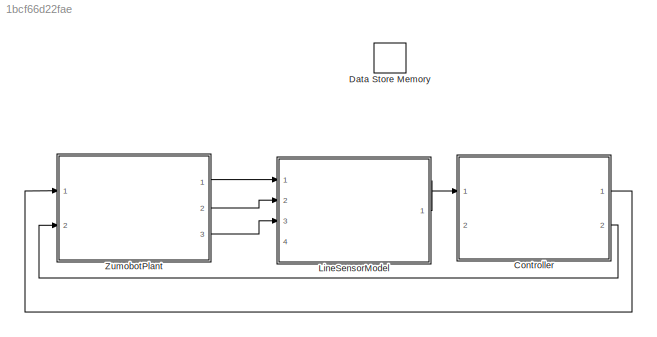
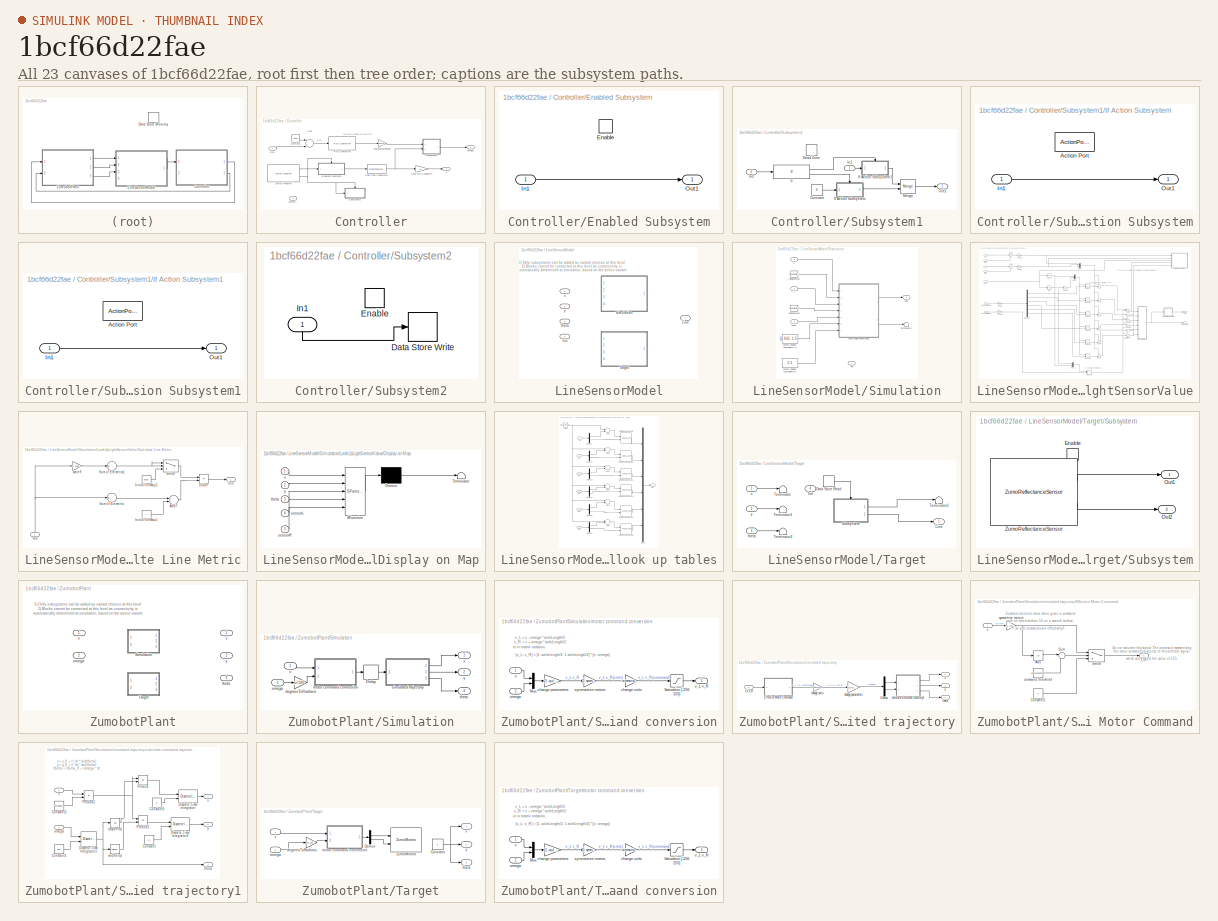
[diagram: thumbnail index - all 23 canvases of the model, root first then tree order]
MODEL slx_1bcf66d22fae
KIND model
CONFIG InitFcn = mapdata = processmap('mapTrackA.mat');
CONFIG PreLoadFcn = evalin('base','sim=1;');
WORKSPACE source: MAT-file member
WORKSPACE MCOS: class17 (value not decoded)
BLOCK [SubSystem] Controller
  Ports = [2, 2]
  RequestExecContextInheritance = off
BLOCK [DataTypeConversion] Controller/Data Type Conversion
  RndMeth = Floor
  SaturateOnIntegerOverflow = off
BLOCK [SubSystem] Controller/Enabled Subsystem
  Ports = [1, 1, 1]
  RequestExecContextInheritance = off
  TreatAsAtomicUnit = on
BLOCK [EnablePort] Controller/Enabled Subsystem/Enable
  Ports = []
BLOCK [Inport] Controller/Enabled Subsystem/In1
  IconDisplay = Port number
BLOCK [Outport] Controller/Enabled Subsystem/Out1
  IconDisplay = Port number
  InitialOutput = 0
BLOCK [Inport] Controller/Line
  IconDisplay = Port number
BLOCK [Reference] Controller/PID Controller  REF=simulink/Continuous/PID Controller
  AntiWindupMode = none
  Controller = PID
  D = 0.005
  DOutDataTypeStr = Inherit: Inherit via internal rule
  DOutMax = []
  DOutMin = []
  DParamDataTypeStr = Inherit: Inherit via internal rule
  DParamMax = []
  DParamMin = []
  DifferentiatorICPrevScaledInput = 0
  DifferentiatorOutDataTypeStr = Inherit: Inherit via internal rule
  DifferentiatorOutMax = []
  DifferentiatorOutMin = []
  ExternalReset = none
  FilterContinuousStateAttributes = ''
  FilterMethod = Forward Euler
  FilterOutDataTypeStr = Inherit: Inherit via internal rule
  FilterOutMax = []
  FilterOutMin = []
  FilterRTWStateStorageClass = Auto
  FilterStateMustResolveToSignalObject = off
  Form = Parallel
  I = 0.01
  IOutDataTypeStr = Inherit: Inherit via internal rule
  IOutMax = []
  IOutMin = []
  IParamDataTypeStr = Inherit: Inherit via internal rule
  IParamMax = []
  IParamMin = []
  IgnoreLimit = off
  InitialConditionForFilter = 0
  InitialConditionForIntegrator = 0
  InitialConditionSource = internal
  IntegratorContinuousStateAttributes = ''
  IntegratorMethod = Forward Euler
  IntegratorOutDataTypeStr = Inherit: Inherit via internal rule
  IntegratorOutMax = []
  IntegratorOutMin = []
  IntegratorRTWStateStorageClass = Auto
  IntegratorStateMustResolveToSignalObject = off
  Kb = 1
  KbOutDataTypeStr = Inherit: Inherit via internal rule
  KbOutMax = []
  KbOutMin = []
  KbParamDataTypeStr = Inherit: Inherit via internal rule
  KbParamMax = []
  KbParamMin = []
  Kt = 1
  KtOutDataTypeStr = Inherit: Inherit via internal rule
  KtOutMax = []
  KtOutMin = []
  KtParamDataTypeStr = Inherit: Inherit via internal rule
  KtParamMax = []
  KtParamMin = []
  LimitOutput = off
  LinearizeAsGain = on
  LockScale = off
  LowerSaturationLimit = -5
  N = 1
  NOutDataTypeStr = Inherit: Inherit via internal rule
  NOutMax = []
  NOutMin = []
  NParamDataTypeStr = Inherit: Inherit via internal rule
  NParamMax = []
  NParamMin = []
  P = 0.01
  POutDataTypeStr = Inherit: Inherit via internal rule
  POutMax = []
  POutMin = []
  PParamDataTypeStr = Inherit: Inherit via internal rule
  PParamMax = []
  PParamMin = []
  Ports = [1, 1]
  RndMeth = Floor
  SampleTime = -1
  SaturateOnIntegerOverflow = off
  SaturationOutDataTypeStr = Inherit: Same as input
  SaturationOutMax = []
  SaturationOutMin = []
  SourceBlock = simulink/Continuous/PID Controller
  SourceType = PID 1dof
  SumAccumDataTypeStr = Inherit: Inherit via internal rule
  SumDAccumDataTypeStr = Inherit: Inherit via internal rule
  SumDOutDataTypeStr = Inherit: Inherit via internal rule
  SumDOutMax = []
  SumDOutMin = []
  SumI1AccumDataTypeStr = Inherit: Inherit via internal rule
  SumI1OutDataTypeStr = Inherit: Inherit via internal rule
  SumI1OutMax = []
  SumI1OutMin = []
  SumI2AccumDataTypeStr = Inherit: Inherit via internal rule
  SumI2OutDataTypeStr = Inherit: Inherit via internal rule
  SumI2OutMax = []
  SumI2OutMin = []
  SumI3AccumDataTypeStr = Inherit: Inherit via internal rule
  SumI3OutDataTypeStr = Inherit: Inherit via internal rule
  SumI3OutMax = []
  SumI3OutMin = []
  SumOutDataTypeStr = Inherit: Inherit via internal rule
  SumOutMax = []
  SumOutMin = []
  TimeDomain = Discrete-time
  TrackingMode = off
  UpperSaturationLimit = 5
  UseFilter = on
  ZeroCross = on
BLOCK [Reference] Controller/Serial Receive  REF=arduinolib/Serial Receive
  Ports = [0, 2]
  SourceBlock = arduinolib/Serial Receive
  SourceType = Arduino Serial Receive
  blockPlatform = arduino
  portNumber = 0
  sampleTime = 0.01
  showOutStatus = on
BLOCK [Constant] Controller/SetPoint
  Value = 2500
BLOCK [SubSystem] Controller/Subsystem1
  Ports = [2, 1]
  RequestExecContextInheritance = off
BLOCK [Constant] Controller/Subsystem1/Constant
  Value = 0
BLOCK [DeadZone] Controller/Subsystem1/Dead Zone
  Commented = on
  LowerValue = -5
  UpperValue = 5
BLOCK [If] Controller/Subsystem1/If
  IfExpression = u1 > 5
  Ports = [1, 2]
BLOCK [SubSystem] Controller/Subsystem1/If Action Subsystem
  Ports = [1, 1, 0, 0, 0, 0, 0, 1]
  RequestExecContextInheritance = off
  TreatAsAtomicUnit = on
BLOCK [ActionPort] Controller/Subsystem1/If Action Subsystem/Action Port
  ActionType = else
BLOCK [Inport] Controller/Subsystem1/If Action Subsystem/In1
  IconDisplay = Port number
BLOCK [Outport] Controller/Subsystem1/If Action Subsystem/Out1
  IconDisplay = Port number
BLOCK [SubSystem] Controller/Subsystem1/If Action Subsystem1
  Ports = [1, 1, 0, 0, 0, 0, 0, 1]
  RequestExecContextInheritance = off
  TreatAsAtomicUnit = on
BLOCK [ActionPort] Controller/Subsystem1/If Action Subsystem1/Action Port
  ActionType = then
BLOCK [Inport] Controller/Subsystem1/If Action Subsystem1/In1
  IconDisplay = Port number
BLOCK [Outport] Controller/Subsystem1/If Action Subsystem1/Out1
  IconDisplay = Port number
BLOCK [Inport] Controller/Subsystem1/In1
  IconDisplay = Port number
BLOCK [Inport] Controller/Subsystem1/In2
  IconDisplay = Port number
  Port = 2
BLOCK [Merge] Controller/Subsystem1/Merge
  Ports = [2, 1]
BLOCK [Outport] Controller/Subsystem1/Out1
  IconDisplay = Port number
BLOCK [SubSystem] Controller/Subsystem2
  Ports = [1, 0, 1]
  Priority = 0
  RequestExecContextInheritance = off
BLOCK [DataStoreWrite] Controller/Subsystem2/Data Store Write
  DataStoreElements = A
  Ports = [1]
BLOCK [EnablePort] Controller/Subsystem2/Enable
  Ports = []
BLOCK [Inport] Controller/Subsystem2/In1
  IconDisplay = Port number
BLOCK [Sum] Controller/Sum
  InputSameDT = off
  Inputs = +-
  OutDataTypeStr = Inherit: Inherit via internal rule
  Ports = [2, 1]
  SaturateOnIntegerOverflow = off
BLOCK [Outport] Controller/omega
  IconDisplay = Port number
  Port = 2
BLOCK [Gain] Controller/radiansToDegrees
  Gain = 180/pi
  OutDataTypeStr = Inherit: Inherit via internal rule
  ParamDataTypeStr = Inherit: Inherit via internal rule
  SaturateOnIntegerOverflow = off
BLOCK [Gain] Controller/track while opposite
  OutDataTypeStr = Inherit: Inherit via internal rule
  ParamDataTypeStr = Inherit: Inherit via internal rule
  SaturateOnIntegerOverflow = off
BLOCK [Outport] Controller/v
  IconDisplay = Port number
BLOCK [Inport] Controller/velocity
  IconDisplay = Port number
  Port = 2
BLOCK [DataStoreMemory] Data Store Memory
  Priority = 2
  ReadBeforeWriteMsg = warning
  WriteAfterReadMsg = warning
  WriteAfterWriteMsg = warning
BLOCK [SubSystem] LineSensorModel
  Ports = [4, 1]
  RequestExecContextInheritance = off
  Variant = on
BLOCK [Inport] LineSensorModel/Init
  IconDisplay = Port number
  Port = 4
BLOCK [Outport] LineSensorModel/Line
  IconDisplay = Port number
BLOCK [SubSystem] LineSensorModel/Simulation
  Ports = [4, 1]
  RequestExecContextInheritance = off
  VariantControl = sim==1
BLOCK [Inport] LineSensorModel/Simulation/Init
  IconDisplay = Port number
  Port = 4
BLOCK [Constant] LineSensorModel/Simulation/InitialXonMap
  Value = mapdata.StartX
BLOCK [Constant] LineSensorModel/Simulation/InitialYonMap
  Value = mapdata.StartY
BLOCK [Outport] LineSensorModel/Simulation/Line
  IconDisplay = Port number
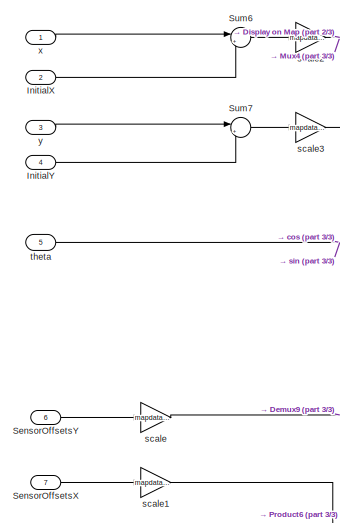
[diagram: LineSensorModel/Simulation/LookUpLightSensorValue - part 1/3, top left region]
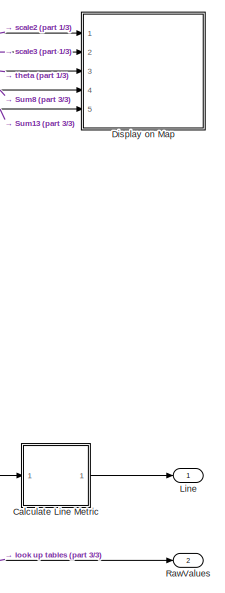
[diagram: LineSensorModel/Simulation/LookUpLightSensorValue - part 2/3, top right region]
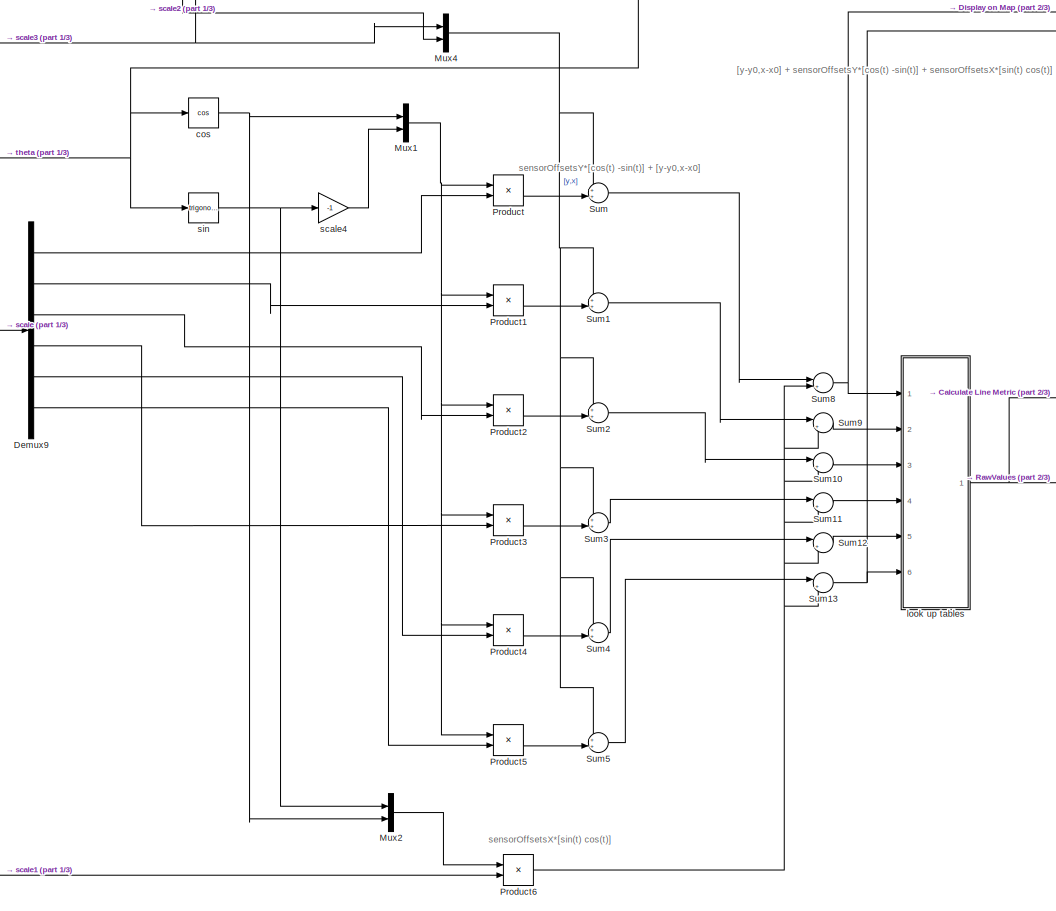
[diagram: LineSensorModel/Simulation/LookUpLightSensorValue - part 3/3, center side, full height]
BLOCK [SubSystem] LineSensorModel/Simulation/LookUpLightSensorValue
  Ports = [7, 2]
  RequestExecContextInheritance = off
BLOCK [SubSystem] LineSensorModel/Simulation/LookUpLightSensorValue/Calculate Line Metric
  Ports = [1, 1]
  RequestExecContextInheritance = off
BLOCK [Sum] LineSensorModel/Simulation/LookUpLightSensorValue/Calculate Line Metric/Add7
  InputSameDT = off
  OutDataTypeStr = Inherit: Inherit via internal rule
  Ports = [2, 1]
  SaturateOnIntegerOverflow = off
BLOCK [Product] LineSensorModel/Simulation/LookUpLightSensorValue/Calculate Line Metric/Divide
  InputSameDT = off
  Inputs = */
  OutDataTypeStr = Inherit: Inherit via internal rule
  Ports = [2, 1]
  RndMeth = Floor
  SaturateOnIntegerOverflow = off
BLOCK [Constant] LineSensorModel/Simulation/LookUpLightSensorValue/Calculate Line Metric/InitialYonMap1
BLOCK [Constant] LineSensorModel/Simulation/LookUpLightSensorValue/Calculate Line Metric/InitialYonMap2
  Value = 5000
BLOCK [Sum] LineSensorModel/Simulation/LookUpLightSensorValue/Calculate Line Metric/Sum of Elements
  InputSameDT = off
  Inputs = +
  OutDataTypeStr = Inherit: Inherit via internal rule
  Ports = [1, 1]
  SaturateOnIntegerOverflow = off
BLOCK [Sum] LineSensorModel/Simulation/LookUpLightSensorValue/Calculate Line Metric/Sum of Elements1
  InputSameDT = off
  Inputs = +
  OutDataTypeStr = Inherit: Inherit via internal rule
  Ports = [1, 1]
  SaturateOnIntegerOverflow = off
BLOCK [Switch] LineSensorModel/Simulation/LookUpLightSensorValue/Calculate Line Metric/Switch
  Criteria = u2 > Threshold
  InputSameDT = off
  SaturateOnIntegerOverflow = off
BLOCK [Outport] LineSensorModel/Simulation/LookUpLightSensorValue/Calculate Line Metric/line
  IconDisplay = Port number
BLOCK [Inport] LineSensorModel/Simulation/LookUpLightSensorValue/Calculate Line Metric/raw
  IconDisplay = Port number
BLOCK [Gain] LineSensorModel/Simulation/LookUpLightSensorValue/Calculate Line Metric/scale9
  Gain = [1 1000 2000 3000 4000 5000]
  OutDataTypeStr = Inherit: Inherit via internal rule
  ParamDataTypeStr = Inherit: Inherit via internal rule
  SaturateOnIntegerOverflow = off
BLOCK [Demux] LineSensorModel/Simulation/LookUpLightSensorValue/Demux9
  DisplayOption = bar
  Outputs = 6
  Ports = [1, 6]
BLOCK [SubSystem] LineSensorModel/Simulation/LookUpLightSensorValue/Display on Map
  ErrorFcn = Stateflow.Translate.translate
  PermitHierarchicalResolution = ExplicitOnly
  Ports = [5]
  RequestExecContextInheritance = off
  SFBlockType = MATLAB Function
  TreatAsAtomicUnit = on
BLOCK [Demux] LineSensorModel/Simulation/LookUpLightSensorValue/Display on Map/ Demux 
  Outputs = 1
  Ports = [1, 1]
BLOCK [S-Function] LineSensorModel/Simulation/LookUpLightSensorValue/Display on Map/ SFunction 
  EnableBusSupport = on
  FunctionName = sf_sfun
  PortCounts = [5 1]
  Ports = [5, 1]
  Tag = Stateflow S-Function zumo_PID_controller_line_value 1
BLOCK [Terminator] LineSensorModel/Simulation/LookUpLightSensorValue/Display on Map/ Terminator 
BLOCK [Inport] LineSensorModel/Simulation/LookUpLightSensorValue/Display on Map/sensorL
  IconDisplay = Port number
  Port = 4
BLOCK [Inport] LineSensorModel/Simulation/LookUpLightSensorValue/Display on Map/sensorR
  IconDisplay = Port number
  Port = 5
BLOCK [Inport] LineSensorModel/Simulation/LookUpLightSensorValue/Display on Map/theta
  IconDisplay = Port number
  Port = 3
BLOCK [Inport] LineSensorModel/Simulation/LookUpLightSensorValue/Display on Map/x
  IconDisplay = Port number
BLOCK [Inport] LineSensorModel/Simulation/LookUpLightSensorValue/Display on Map/y
  IconDisplay = Port number
  Port = 2
BLOCK [Inport] LineSensorModel/Simulation/LookUpLightSensorValue/InitialX
  IconDisplay = Port number
  Port = 2
BLOCK [Inport] LineSensorModel/Simulation/LookUpLightSensorValue/InitialY
  IconDisplay = Port number
  Port = 4
BLOCK [Outport] LineSensorModel/Simulation/LookUpLightSensorValue/Line
  IconDisplay = Port number
BLOCK [Mux] LineSensorModel/Simulation/LookUpLightSensorValue/Mux1
  DisplayOption = bar
  Inputs = 2
  Ports = [2, 1]
BLOCK [Mux] LineSensorModel/Simulation/LookUpLightSensorValue/Mux2
  DisplayOption = bar
  Inputs = 2
  Ports = [2, 1]
BLOCK [Mux] LineSensorModel/Simulation/LookUpLightSensorValue/Mux4
  DisplayOption = bar
  Inputs = 2
  Ports = [2, 1]
BLOCK [Product] LineSensorModel/Simulation/LookUpLightSensorValue/Product
  InputSameDT = off
  OutDataTypeStr = Inherit: Inherit via internal rule
  Ports = [2, 1]
  RndMeth = Floor
  SaturateOnIntegerOverflow = off
BLOCK [Product] LineSensorModel/Simulation/LookUpLightSensorValue/Product1
  InputSameDT = off
  OutDataTypeStr = Inherit: Inherit via internal rule
  Ports = [2, 1]
  RndMeth = Floor
  SaturateOnIntegerOverflow = off
BLOCK [Product] LineSensorModel/Simulation/LookUpLightSensorValue/Product2
  InputSameDT = off
  OutDataTypeStr = Inherit: Inherit via internal rule
  Ports = [2, 1]
  RndMeth = Floor
  SaturateOnIntegerOverflow = off
BLOCK [Product] LineSensorModel/Simulation/LookUpLightSensorValue/Product3
  InputSameDT = off
  OutDataTypeStr = Inherit: Inherit via internal rule
  Ports = [2, 1]
  RndMeth = Floor
  SaturateOnIntegerOverflow = off
BLOCK [Product] LineSensorModel/Simulation/LookUpLightSensorValue/Product4
  InputSameDT = off
  OutDataTypeStr = Inherit: Inherit via internal rule
  Ports = [2, 1]
  RndMeth = Floor
  SaturateOnIntegerOverflow = off
BLOCK [Product] LineSensorModel/Simulation/LookUpLightSensorValue/Product5
  InputSameDT = off
  OutDataTypeStr = Inherit: Inherit via internal rule
  Ports = [2, 1]
  RndMeth = Floor
  SaturateOnIntegerOverflow = off
BLOCK [Product] LineSensorModel/Simulation/LookUpLightSensorValue/Product6
  InputSameDT = off
  OutDataTypeStr = Inherit: Inherit via internal rule
  Ports = [2, 1]
  RndMeth = Floor
  SaturateOnIntegerOverflow = off
BLOCK [Outport] LineSensorModel/Simulation/LookUpLightSensorValue/RawValues
  IconDisplay = Port number
  Port = 2
BLOCK [Inport] LineSensorModel/Simulation/LookUpLightSensorValue/SensorOffsetsX
  IconDisplay = Port number
  Port = 7
BLOCK [Inport] LineSensorModel/Simulation/LookUpLightSensorValue/SensorOffsetsY
  IconDisplay = Port number
  Port = 6
BLOCK [Sum] LineSensorModel/Simulation/LookUpLightSensorValue/Sum
  IconShape = round
  InputSameDT = off
  Inputs = ++|
  OutDataTypeStr = Inherit: Inherit via internal rule
  Ports = [2, 1]
  SaturateOnIntegerOverflow = off
BLOCK [Sum] LineSensorModel/Simulation/LookUpLightSensorValue/Sum1
  IconShape = round
  InputSameDT = off
  Inputs = ++|
  OutDataTypeStr = Inherit: Inherit via internal rule
  Ports = [2, 1]
  SaturateOnIntegerOverflow = off
BLOCK [Sum] LineSensorModel/Simulation/LookUpLightSensorValue/Sum10
  IconShape = round
  InputSameDT = off
  Inputs = |++
  OutDataTypeStr = Inherit: Inherit via internal rule
  Ports = [2, 1]
  SaturateOnIntegerOverflow = off
BLOCK [Sum] LineSensorModel/Simulation/LookUpLightSensorValue/Sum11
  IconShape = round
  InputSameDT = off
  Inputs = |++
  OutDataTypeStr = Inherit: Inherit via internal rule
  Ports = [2, 1]
  SaturateOnIntegerOverflow = off
BLOCK [Sum] LineSensorModel/Simulation/LookUpLightSensorValue/Sum12
  IconShape = round
  InputSameDT = off
  Inputs = |++
  OutDataTypeStr = Inherit: Inherit via internal rule
  Ports = [2, 1]
  SaturateOnIntegerOverflow = off
BLOCK [Sum] LineSensorModel/Simulation/LookUpLightSensorValue/Sum13
  IconShape = round
  InputSameDT = off
  Inputs = |++
  OutDataTypeStr = Inherit: Inherit via internal rule
  Ports = [2, 1]
  SaturateOnIntegerOverflow = off
BLOCK [Sum] LineSensorModel/Simulation/LookUpLightSensorValue/Sum2
  IconShape = round
  InputSameDT = off
  Inputs = ++|
  OutDataTypeStr = Inherit: Inherit via internal rule
  Ports = [2, 1]
  SaturateOnIntegerOverflow = off
BLOCK [Sum] LineSensorModel/Simulation/LookUpLightSensorValue/Sum3
  IconShape = round
  InputSameDT = off
  Inputs = ++|
  OutDataTypeStr = Inherit: Inherit via internal rule
  Ports = [2, 1]
  SaturateOnIntegerOverflow = off
BLOCK [Sum] LineSensorModel/Simulation/LookUpLightSensorValue/Sum4
  IconShape = round
  InputSameDT = off
  Inputs = ++|
  OutDataTypeStr = Inherit: Inherit via internal rule
  Ports = [2, 1]
  SaturateOnIntegerOverflow = off
BLOCK [Sum] LineSensorModel/Simulation/LookUpLightSensorValue/Sum5
  IconShape = round
  InputSameDT = off
  Inputs = ++|
  OutDataTypeStr = Inherit: Inherit via internal rule
  Ports = [2, 1]
  SaturateOnIntegerOverflow = off
BLOCK [Sum] LineSensorModel/Simulation/LookUpLightSensorValue/Sum6
  IconShape = round
  InputSameDT = off
  Inputs = |++
  OutDataTypeStr = Inherit: Inherit via internal rule
  Ports = [2, 1]
  SaturateOnIntegerOverflow = off
BLOCK [Sum] LineSensorModel/Simulation/LookUpLightSensorValue/Sum7
  IconShape = round
  InputSameDT = off
  Inputs = |++
  OutDataTypeStr = Inherit: Inherit via internal rule
  Ports = [2, 1]
  SaturateOnIntegerOverflow = off
BLOCK [Sum] LineSensorModel/Simulation/LookUpLightSensorValue/Sum8
  IconShape = round
  InputSameDT = off
  Inputs = |++
  OutDataTypeStr = Inherit: Inherit via internal rule
  Ports = [2, 1]
  SaturateOnIntegerOverflow = off
BLOCK [Sum] LineSensorModel/Simulation/LookUpLightSensorValue/Sum9
  IconShape = round
  InputSameDT = off
  Inputs = |++
  OutDataTypeStr = Inherit: Inherit via internal rule
  Ports = [2, 1]
  SaturateOnIntegerOverflow = off
BLOCK [Trigonometry] LineSensorModel/Simulation/LookUpLightSensorValue/cos
  Operator = cos
  Ports = [1, 1]
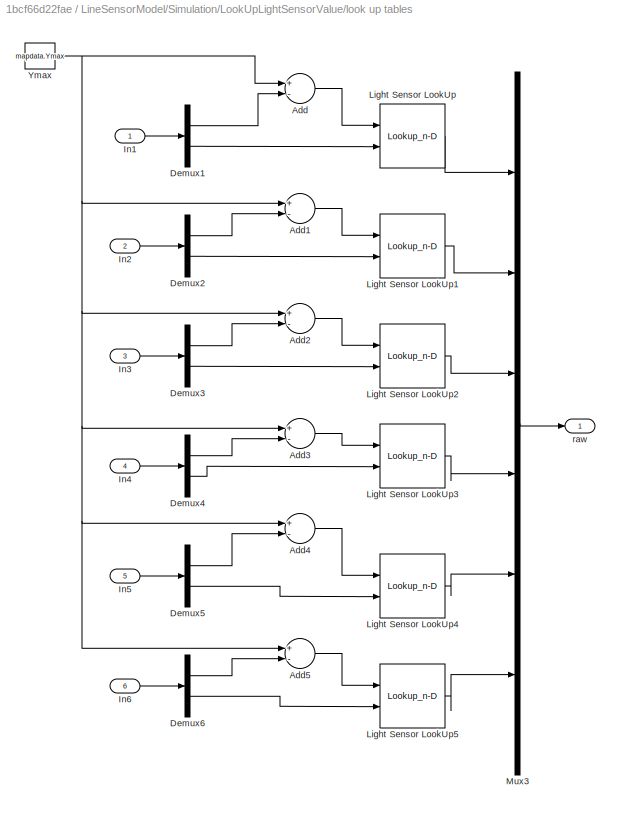
BLOCK [SubSystem] LineSensorModel/Simulation/LookUpLightSensorValue/look up tables
  Ports = [6, 1]
  RequestExecContextInheritance = off
BLOCK [Sum] LineSensorModel/Simulation/LookUpLightSensorValue/look up tables/Add
  InputSameDT = off
  Inputs = +-
  OutDataTypeStr = Inherit: Inherit via internal rule
  Ports = [2, 1]
  SaturateOnIntegerOverflow = off
BLOCK [Sum] LineSensorModel/Simulation/LookUpLightSensorValue/look up tables/Add1
  InputSameDT = off
  Inputs = +-
  OutDataTypeStr = Inherit: Inherit via internal rule
  Ports = [2, 1]
  SaturateOnIntegerOverflow = off
BLOCK [Sum] LineSensorModel/Simulation/LookUpLightSensorValue/look up tables/Add2
  InputSameDT = off
  Inputs = +-
  OutDataTypeStr = Inherit: Inherit via internal rule
  Ports = [2, 1]
  SaturateOnIntegerOverflow = off
BLOCK [Sum] LineSensorModel/Simulation/LookUpLightSensorValue/look up tables/Add3
  InputSameDT = off
  Inputs = +-
  OutDataTypeStr = Inherit: Inherit via internal rule
  Ports = [2, 1]
  SaturateOnIntegerOverflow = off
BLOCK [Sum] LineSensorModel/Simulation/LookUpLightSensorValue/look up tables/Add4
  InputSameDT = off
  Inputs = +-
  OutDataTypeStr = Inherit: Inherit via internal rule
  Ports = [2, 1]
  SaturateOnIntegerOverflow = off
BLOCK [Sum] LineSensorModel/Simulation/LookUpLightSensorValue/look up tables/Add5
  InputSameDT = off
  Inputs = +-
  OutDataTypeStr = Inherit: Inherit via internal rule
  Ports = [2, 1]
  SaturateOnIntegerOverflow = off
BLOCK [Demux] LineSensorModel/Simulation/LookUpLightSensorValue/look up tables/Demux1
  DisplayOption = bar
  Outputs = 2
  Ports = [1, 2]
BLOCK [Demux] LineSensorModel/Simulation/LookUpLightSensorValue/look up tables/Demux2
  DisplayOption = bar
  Outputs = 2
  Ports = [1, 2]
BLOCK [Demux] LineSensorModel/Simulation/LookUpLightSensorValue/look up tables/Demux3
  DisplayOption = bar
  Outputs = 2
  Ports = [1, 2]
BLOCK [Demux] LineSensorModel/Simulation/LookUpLightSensorValue/look up tables/Demux4
  DisplayOption = bar
  Outputs = 2
  Ports = [1, 2]
BLOCK [Demux] LineSensorModel/Simulation/LookUpLightSensorValue/look up tables/Demux5
  DisplayOption = bar
  Outputs = 2
  Ports = [1, 2]
BLOCK [Demux] LineSensorModel/Simulation/LookUpLightSensorValue/look up tables/Demux6
  DisplayOption = bar
  Outputs = 2
  Ports = [1, 2]
BLOCK [Inport] LineSensorModel/Simulation/LookUpLightSensorValue/look up tables/In1
  IconDisplay = Port number
BLOCK [Inport] LineSensorModel/Simulation/LookUpLightSensorValue/look up tables/In2
  IconDisplay = Port number
  Port = 2
BLOCK [Inport] LineSensorModel/Simulation/LookUpLightSensorValue/look up tables/In3
  IconDisplay = Port number
  Port = 3
BLOCK [Inport] LineSensorModel/Simulation/LookUpLightSensorValue/look up tables/In4
  IconDisplay = Port number
  Port = 4
BLOCK [Inport] LineSensorModel/Simulation/LookUpLightSensorValue/look up tables/In5
  IconDisplay = Port number
  Port = 5
BLOCK [Inport] LineSensorModel/Simulation/LookUpLightSensorValue/look up tables/In6
  IconDisplay = Port number
  Port = 6
BLOCK [Lookup_n-D] LineSensorModel/Simulation/LookUpLightSensorValue/look up tables/Light Sensor LookUp
  BreakpointsForDimension1 = mapdata.yBreakPoints
  BreakpointsForDimension2 = mapdata.xBreakPoints
  ExtrapMethod = Clip
  InterpMethod = Flat
  Ports = [2, 1]
  RndMeth = Round
  SaturateOnIntegerOverflow = on
  Table = mapdata.ReflectanceData
  UseLastTableValue = on
BLOCK [Lookup_n-D] LineSensorModel/Simulation/LookUpLightSensorValue/look up tables/Light Sensor LookUp1
  BreakpointsForDimension1 = mapdata.yBreakPoints
  BreakpointsForDimension2 = mapdata.xBreakPoints
  ExtrapMethod = Clip
  InterpMethod = Flat
  Ports = [2, 1]
  RndMeth = Round
  SaturateOnIntegerOverflow = on
  Table = mapdata.ReflectanceData
  UseLastTableValue = on
BLOCK [Lookup_n-D] LineSensorModel/Simulation/LookUpLightSensorValue/look up tables/Light Sensor LookUp2
  BreakpointsForDimension1 = mapdata.yBreakPoints
  BreakpointsForDimension2 = mapdata.xBreakPoints
  ExtrapMethod = Clip
  InterpMethod = Flat
  Ports = [2, 1]
  RndMeth = Round
  SaturateOnIntegerOverflow = on
  Table = mapdata.ReflectanceData
  UseLastTableValue = on
BLOCK [Lookup_n-D] LineSensorModel/Simulation/LookUpLightSensorValue/look up tables/Light Sensor LookUp3
  BreakpointsForDimension1 = mapdata.yBreakPoints
  BreakpointsForDimension2 = mapdata.xBreakPoints
  ExtrapMethod = Clip
  InterpMethod = Flat
  Ports = [2, 1]
  RndMeth = Round
  SaturateOnIntegerOverflow = on
  Table = mapdata.ReflectanceData
  UseLastTableValue = on
BLOCK [Lookup_n-D] LineSensorModel/Simulation/LookUpLightSensorValue/look up tables/Light Sensor LookUp4
  BreakpointsForDimension1 = mapdata.yBreakPoints
  BreakpointsForDimension2 = mapdata.xBreakPoints
  ExtrapMethod = Clip
  InterpMethod = Flat
  Ports = [2, 1]
  RndMeth = Round
  SaturateOnIntegerOverflow = on
  Table = mapdata.ReflectanceData
  UseLastTableValue = on
BLOCK [Lookup_n-D] LineSensorModel/Simulation/LookUpLightSensorValue/look up tables/Light Sensor LookUp5
  BreakpointsForDimension1 = mapdata.yBreakPoints
  BreakpointsForDimension2 = mapdata.xBreakPoints
  ExtrapMethod = Clip
  InterpMethod = Flat
  Ports = [2, 1]
  RndMeth = Round
  SaturateOnIntegerOverflow = on
  Table = mapdata.ReflectanceData
  UseLastTableValue = on
BLOCK [Mux] LineSensorModel/Simulation/LookUpLightSensorValue/look up tables/Mux3
  DisplayOption = bar
  Inputs = 6
  Ports = [6, 1]
BLOCK [Constant] LineSensorModel/Simulation/LookUpLightSensorValue/look up tables/Ymax
  Value = mapdata.Ymax
BLOCK [Outport] LineSensorModel/Simulation/LookUpLightSensorValue/look up tables/raw
  IconDisplay = Port number
BLOCK [Gain] LineSensorModel/Simulation/LookUpLightSensorValue/scale
  Gain = mapdata.scale
  OutDataTypeStr = Inherit: Inherit via internal rule
  ParamDataTypeStr = Inherit: Inherit via internal rule
  SaturateOnIntegerOverflow = off
BLOCK [Gain] LineSensorModel/Simulation/LookUpLightSensorValue/scale1
  Gain = mapdata.scale
  OutDataTypeStr = Inherit: Inherit via internal rule
  ParamDataTypeStr = Inherit: Inherit via internal rule
  SaturateOnIntegerOverflow = off
BLOCK [Gain] LineSensorModel/Simulation/LookUpLightSensorValue/scale2
  Gain = mapdata.scale
  OutDataTypeStr = Inherit: Inherit via internal rule
  ParamDataTypeStr = Inherit: Inherit via internal rule
  SaturateOnIntegerOverflow = off
BLOCK [Gain] LineSensorModel/Simulation/LookUpLightSensorValue/scale3
  Gain = mapdata.scale
  OutDataTypeStr = Inherit: Inherit via internal rule
  ParamDataTypeStr = Inherit: Inherit via internal rule
  SaturateOnIntegerOverflow = off
BLOCK [Gain] LineSensorModel/Simulation/LookUpLightSensorValue/scale4
  Gain = -1
  OutDataTypeStr = Inherit: Inherit via internal rule
  ParamDataTypeStr = Inherit: Inherit via internal rule
  SaturateOnIntegerOverflow = off
BLOCK [Trigonometry] LineSensorModel/Simulation/LookUpLightSensorValue/sin
  Ports = [1, 1]
BLOCK [Inport] LineSensorModel/Simulation/LookUpLightSensorValue/theta
  IconDisplay = Port number
  Port = 5
BLOCK [Inport] LineSensorModel/Simulation/LookUpLightSensorValue/x
  IconDisplay = Port number
BLOCK [Inport] LineSensorModel/Simulation/LookUpLightSensorValue/y
  IconDisplay = Port number
  Port = 3
BLOCK [Terminator] LineSensorModel/Simulation/Terminator2
BLOCK [Constant] LineSensorModel/Simulation/sensor position coefficients (Y)
  Value = [2.945, 1.585, 0.475,-0.475,-1.585, -2.945]
BLOCK [Constant] LineSensorModel/Simulation/sensor position coefficients(X)
  Value = 5.5
BLOCK [Inport] LineSensorModel/Simulation/theta
  IconDisplay = Port number
  Port = 3
BLOCK [Inport] LineSensorModel/Simulation/x
  IconDisplay = Port number
BLOCK [Inport] LineSensorModel/Simulation/y
  IconDisplay = Port number
  Port = 2
BLOCK [SubSystem] LineSensorModel/Target
  Ports = [4, 1]
  RequestExecContextInheritance = off
  VariantControl = sim==0
BLOCK [DataStoreRead] LineSensorModel/Target/Data Store Read
  Ports = [0, 1]
BLOCK [Inport] LineSensorModel/Target/Init
  IconDisplay = Port number
  Port = 4
BLOCK [Outport] LineSensorModel/Target/Line
  IconDisplay = Port number
BLOCK [SubSystem] LineSensorModel/Target/Subsystem
  Ports = [0, 2, 1]
  RequestExecContextInheritance = off
BLOCK [EnablePort] LineSensorModel/Target/Subsystem/Enable
  Ports = []
BLOCK [Outport] LineSensorModel/Target/Subsystem/Out1
  IconDisplay = Port number
BLOCK [Outport] LineSensorModel/Target/Subsystem/Out2
  IconDisplay = Port number
  InitialOutput = 2500
  Port = 2
BLOCK [Reference] LineSensorModel/Target/Subsystem/ZumoReflectanceSensor  REF=ZumoBotLib/ZumoReflectanceSensor
  Ports = [0, 2]
  SourceBlock = ZumoBotLib/ZumoReflectanceSensor
  SourceType = Zumo Reflectance Sensor
  debug_dd = off
  emitterPin_dd = 255
  sampleTime_dd = 0.01
BLOCK [Terminator] LineSensorModel/Target/Terminator
BLOCK [Terminator] LineSensorModel/Target/Terminator1
BLOCK [Terminator] LineSensorModel/Target/Terminator2
BLOCK [Terminator] LineSensorModel/Target/Terminator3
BLOCK [Inport] LineSensorModel/Target/theta
  IconDisplay = Port number
  Port = 3
BLOCK [Inport] LineSensorModel/Target/x
  IconDisplay = Port number
BLOCK [Inport] LineSensorModel/Target/y
  IconDisplay = Port number
  Port = 2
BLOCK [Inport] LineSensorModel/theta
  IconDisplay = Port number
  Port = 3
BLOCK [Inport] LineSensorModel/x
  IconDisplay = Port number
BLOCK [Inport] LineSensorModel/y
  IconDisplay = Port number
  Port = 2
BLOCK [SubSystem] ZumobotPlant
  Ports = [2, 3]
  RequestExecContextInheritance = off
  Variant = on
BLOCK [SubSystem] ZumobotPlant/Simulation
  Ports = [2, 3]
  RequestExecContextInheritance = off
  VariantControl = sim==1
BLOCK [Delay] ZumobotPlant/Simulation/Delay
  DelayLength = 1
  InitialCondition = 0
  InputPortMap = u0
  Ports = [1, 1]
BLOCK [Gain] ZumobotPlant/Simulation/degreesToRadians
  Gain = pi/180
  OutDataTypeStr = Inherit: Inherit via internal rule
  ParamDataTypeStr = Inherit: Inherit via internal rule
  SaturateOnIntegerOverflow = off
BLOCK [SubSystem] ZumobotPlant/Simulation/motor command conversion
  Ports = [2, 1]
  RequestExecContextInheritance = off
BLOCK [Mux] ZumobotPlant/Simulation/motor command conversion/Mux
  DisplayOption = bar
  Inputs = 2
  Ports = [2, 1]
BLOCK [Saturate] ZumobotPlant/Simulation/motor command conversion/Saturation [-256 255]
  InputPortMap = u0
  LowerLimit = -256
  Ports = [1, 1]
  UpperLimit = 255
BLOCK [Gain] ZumobotPlant/Simulation/motor command conversion/change parameters
  Gain = [1 -axleLength/2; 1 axleLength/2]
  Multiplication = Matrix(K*u)
  OutDataTypeStr = Inherit: Inherit via internal rule
  ParamDataTypeStr = Inherit: Inherit via internal rule
  SaturateOnIntegerOverflow = off
BLOCK [Gain] ZumobotPlant/Simulation/motor command conversion/change units
  Gain = commandPercmPerSecond
  OutDataTypeStr = Inherit: Inherit via internal rule
  ParamDataTypeStr = Inherit: Inherit via internal rule
  SaturateOnIntegerOverflow = off
BLOCK [Inport] ZumobotPlant/Simulation/motor command conversion/omega
  IconDisplay = Port number
  Port = 2
BLOCK [Gain] ZumobotPlant/Simulation/motor command conversion/symmetrize motors
  Gain = [1 symmetrizeMotors]
  OutDataTypeStr = Inherit: Inherit via internal rule
  ParamDataTypeStr = Inherit: Inherit via internal rule
  SaturateOnIntegerOverflow = off
BLOCK [Inport] ZumobotPlant/Simulation/motor command conversion/v
  IconDisplay = Port number
BLOCK [Outport] ZumobotPlant/Simulation/motor command conversion/v_L v_R
  IconDisplay = Port number
BLOCK [Inport] ZumobotPlant/Simulation/omega
  IconDisplay = Port number
  Port = 2
BLOCK [SubSystem] ZumobotPlant/Simulation/simulated trajectory
  Ports = [1, 3]
  RequestExecContextInheritance = off
BLOCK [Demux] ZumobotPlant/Simulation/simulated trajectory/Demux
  DisplayOption = bar
  Outputs = 2
  Ports = [1, 2]
BLOCK [SubSystem] ZumobotPlant/Simulation/simulated trajectory/Effective Motor Command
  Ports = [1, 1]
  RequestExecContextInheritance = off
BLOCK [Abs] ZumobotPlant/Simulation/simulated trajectory/Effective Motor Command/Abs
  SaturateOnIntegerOverflow = off
BLOCK [Constant] ZumobotPlant/Simulation/simulated trajectory/Effective Motor Command/Constant1
  Value = 0
BLOCK [Sum] ZumobotPlant/Simulation/simulated trajectory/Effective Motor Command/Sum
  IconShape = round
  InputSameDT = off
  Inputs = |+-
  OutDataTypeStr = Inherit: Inherit via internal rule
  Ports = [2, 1]
  SaturateOnIntegerOverflow = off
BLOCK [Switch] ZumobotPlant/Simulation/simulated trajectory/Effective Motor Command/Switch
  InputSameDT = off
  SaturateOnIntegerOverflow = off
BLOCK [Inport] ZumobotPlant/Simulation/simulated trajectory/Effective Motor Command/c
  IconDisplay = Port number
BLOCK [Outport] ZumobotPlant/Simulation/simulated trajectory/Effective Motor Command/c_eff
  IconDisplay = Port number
BLOCK [Constant] ZumobotPlant/Simulation/simulated trajectory/Effective Motor Command/command threshold
  Value = commandThreshold
BLOCK [Gain] ZumobotPlant/Simulation/simulated trajectory/Effective Motor Command/symmetrize motors
  Gain = [1 1/symmetrizeMotors]
  OutDataTypeStr = Inherit: Inherit via internal rule
  ParamDataTypeStr = Inherit: Inherit via internal rule
  SaturateOnIntegerOverflow = off
BLOCK [SubSystem] ZumobotPlant/Simulation/simulated trajectory/calculate simulated trajectory1
  Ports = [2, 3]
  RequestExecContextInheritance = off
BLOCK [Constant] ZumobotPlant/Simulation/simulated trajectory/calculate simulated trajectory1/Constant
  Value = 0
BLOCK [Constant] ZumobotPlant/Simulation/simulated trajectory/calculate simulated trajectory1/Constant1
  Value = pi/2
BLOCK [Constant] ZumobotPlant/Simulation/simulated trajectory/calculate simulated trajectory1/Constant2
  Value = sampleTime
BLOCK [Constant] ZumobotPlant/Simulation/simulated trajectory/calculate simulated trajectory1/Constant3
  Value = 0
BLOCK [DiscreteIntegrator] ZumobotPlant/Simulation/simulated trajectory/calculate simulated trajectory1/Discrete-Time Integrator
  InitialConditionSetting = State (most efficient)
  InitialConditionSource = external
  IntegratorMethod = Accumulation: Forward Euler
  Ports = [2, 1]
  SampleTime = -1
BLOCK [DiscreteIntegrator] ZumobotPlant/Simulation/simulated trajectory/calculate simulated trajectory1/Discrete-Time Integrator1
  InitialConditionSource = external
  Ports = [2, 1]
  SampleTime = -1
BLOCK [DiscreteIntegrator] ZumobotPlant/Simulation/simulated trajectory/calculate simulated trajectory1/Discrete-Time Integrator2
  InitialConditionSetting = State (most efficient)
  InitialConditionSource = external
  IntegratorMethod = Accumulation: Forward Euler
  Ports = [2, 1]
  SampleTime = -1
BLOCK [Product] ZumobotPlant/Simulation/simulated trajectory/calculate simulated trajectory1/Product
  InputSameDT = off
  OutDataTypeStr = Inherit: Inherit via internal rule
  Ports = [2, 1]
  RndMeth = Floor
  SaturateOnIntegerOverflow = off
BLOCK [Product] ZumobotPlant/Simulation/simulated trajectory/calculate simulated trajectory1/Product1
  InputSameDT = off
  OutDataTypeStr = Inherit: Inherit via internal rule
  Ports = [2, 1]
  RndMeth = Floor
  SaturateOnIntegerOverflow = off
BLOCK [Product] ZumobotPlant/Simulation/simulated trajectory/calculate simulated trajectory1/Product2
  InputSameDT = off
  OutDataTypeStr = Inherit: Inherit via internal rule
  Ports = [2, 1]
  RndMeth = Floor
  SaturateOnIntegerOverflow = off
BLOCK [Trigonometry] ZumobotPlant/Simulation/simulated trajectory/calculate simulated trajectory1/cos(theta)
  Operator = cos
  Ports = [1, 1]
BLOCK [Inport] ZumobotPlant/Simulation/simulated trajectory/calculate simulated trajectory1/omega
  IconDisplay = Port number
  Port = 2
BLOCK [Trigonometry] ZumobotPlant/Simulation/simulated trajectory/calculate simulated trajectory1/sin(theta)
  Ports = [1, 1]
BLOCK [Outport] ZumobotPlant/Simulation/simulated trajectory/calculate simulated trajectory1/theta
  IconDisplay = Port number
  Port = 3
BLOCK [Inport] ZumobotPlant/Simulation/simulated trajectory/calculate simulated trajectory1/v
  IconDisplay = Port number
BLOCK [Outport] ZumobotPlant/Simulation/simulated trajectory/calculate simulated trajectory1/x
  IconDisplay = Port number
BLOCK [Outport] ZumobotPlant/Simulation/simulated trajectory/calculate simulated trajectory1/y
  IconDisplay = Port number
  Port = 2
BLOCK [Gain] ZumobotPlant/Simulation/simulated trajectory/change parameters
  Gain = [0.5 0.5; -1/axleLength 1/axleLength]
  Multiplication = Matrix(K*u)
  OutDataTypeStr = Inherit: Inherit via internal rule
  ParamDataTypeStr = Inherit: Inherit via internal rule
  SaturateOnIntegerOverflow = off
BLOCK [Gain] ZumobotPlant/Simulation/simulated trajectory/change units
  Gain = 1/commandPercmPerSecond
  OutDataTypeStr = Inherit: Inherit via internal rule
  ParamDataTypeStr = Inherit: Inherit via internal rule
  SaturateOnIntegerOverflow = off
BLOCK [Outport] ZumobotPlant/Simulation/simulated trajectory/theta
  IconDisplay = Port number
  Port = 3
BLOCK [Inport] ZumobotPlant/Simulation/simulated trajectory/v_L v_R
  IconDisplay = Port number
BLOCK [Outport] ZumobotPlant/Simulation/simulated trajectory/x
  IconDisplay = Port number
BLOCK [Outport] ZumobotPlant/Simulation/simulated trajectory/y
  IconDisplay = Port number
  Port = 2
BLOCK [Outport] ZumobotPlant/Simulation/theta
  IconDisplay = Port number
  Port = 3
BLOCK [Inport] ZumobotPlant/Simulation/v
  IconDisplay = Port number
BLOCK [Outport] ZumobotPlant/Simulation/x
  IconDisplay = Port number
BLOCK [Outport] ZumobotPlant/Simulation/y
  IconDisplay = Port number
  Port = 2
BLOCK [SubSystem] ZumobotPlant/Target
  Ports = [2, 3]
  RequestExecContextInheritance = off
  VariantControl = sim==0
BLOCK [Constant] ZumobotPlant/Target/Constant
  Value = 0
BLOCK [Demux] ZumobotPlant/Target/Demux
  DisplayOption = bar
  Outputs = 2
  Ports = [1, 2]
BLOCK [Reference] ZumobotPlant/Target/ZumoMotors  REF=ZumoBotLib/ZumoMotors
  Ports = [2]
  SourceBlock = ZumoBotLib/ZumoMotors
  SourceType = Zumo Motors
  flipLeft = off
  flipRight = off
BLOCK [Gain] ZumobotPlant/Target/degreesToRadians
  Gain = pi/180
  OutDataTypeStr = Inherit: Inherit via internal rule
  ParamDataTypeStr = Inherit: Inherit via internal rule
  SaturateOnIntegerOverflow = off
BLOCK [SubSystem] ZumobotPlant/Target/motor command conversion
  Ports = [2, 1]
  RequestExecContextInheritance = off
BLOCK [Mux] ZumobotPlant/Target/motor command conversion/Mux
  DisplayOption = bar
  Inputs = 2
  Ports = [2, 1]
BLOCK [Saturate] ZumobotPlant/Target/motor command conversion/Saturation [-256 255]
  InputPortMap = u0
  LowerLimit = -256
  Ports = [1, 1]
  UpperLimit = 255
BLOCK [Gain] ZumobotPlant/Target/motor command conversion/change parameters
  Gain = [1 -axleLength/2; 1 axleLength/2]
  Multiplication = Matrix(K*u)
  OutDataTypeStr = Inherit: Inherit via internal rule
  ParamDataTypeStr = Inherit: Inherit via internal rule
  SaturateOnIntegerOverflow = off
BLOCK [Gain] ZumobotPlant/Target/motor command conversion/change units
  Gain = commandPercmPerSecond
  OutDataTypeStr = Inherit: Inherit via internal rule
  ParamDataTypeStr = Inherit: Inherit via internal rule
  SaturateOnIntegerOverflow = off
BLOCK [Inport] ZumobotPlant/Target/motor command conversion/omega
  IconDisplay = Port number
  Port = 2
BLOCK [Gain] ZumobotPlant/Target/motor command conversion/symmetrize motors
  Gain = [1 symmetrizeMotors]
  OutDataTypeStr = Inherit: Inherit via internal rule
  ParamDataTypeStr = Inherit: Inherit via internal rule
  SaturateOnIntegerOverflow = off
BLOCK [Inport] ZumobotPlant/Target/motor command conversion/v
  IconDisplay = Port number
BLOCK [Outport] ZumobotPlant/Target/motor command conversion/v_L v_R
  IconDisplay = Port number
BLOCK [Inport] ZumobotPlant/Target/omega
  IconDisplay = Port number
  Port = 2
BLOCK [Outport] ZumobotPlant/Target/theta
  IconDisplay = Port number
  Port = 3
BLOCK [Inport] ZumobotPlant/Target/v
  IconDisplay = Port number
BLOCK [Outport] ZumobotPlant/Target/x
  IconDisplay = Port number
BLOCK [Outport] ZumobotPlant/Target/y
  IconDisplay = Port number
  Port = 2
BLOCK [Inport] ZumobotPlant/omega
  IconDisplay = Port number
  Port = 2
BLOCK [Outport] ZumobotPlant/theta
  IconDisplay = Port number
  Port = 3
BLOCK [Inport] ZumobotPlant/v
  IconDisplay = Port number
BLOCK [Outport] ZumobotPlant/x
  IconDisplay = Port number
BLOCK [Outport] ZumobotPlant/y
  IconDisplay = Port number
  Port = 2
ANNOTATION Controller: Turning is based on the error
ANNOTATION Controller: error
ANNOTATION LineSensorModel: 1) Only subsystems can be added as variant choices at this level 2) Blocks cannot be connected at this level as connectivity is automatically determined at simulation, based on the active variant
ANNOTATION LineSensorModel/Simulation/LookUpLightSensorValue: [y-y0,x-x0] + sensorOffsetsY*[cos(t) -sin(t)] + sensorOffsetsX*[sin(t) cos(t)]
ANNOTATION LineSensorModel/Simulation/LookUpLightSensorValue: sensorOffsetsX*[sin(t) cos(t)]
ANNOTATION LineSensorModel/Simulation/LookUpLightSensorValue: sensorOffsetsY*[cos(t) -sin(t)] + [y-y0,x-x0]
ANNOTATION ZumobotPlant: 1) Only subsystems can be added as variant choices at this level 2) Blocks cannot be connected at this level as connectivity is automatically determined at simulation, based on the active variant
ANNOTATION ZumobotPlant/Simulation/motor command conversion: [v_L; v_R] = [1 -axleLength/2; 1 axleLength/2] * [v; omega]
ANNOTATION ZumobotPlant/Simulation/motor command conversion: or in matrix notation,
ANNOTATION ZumobotPlant/Simulation/motor command conversion: v_L = v - omega * axleLength/2 v_R = v + omega * axleLength/2
ANNOTATION ZumobotPlant/Simulation/simulated trajectory/Effective Motor Command: Do not saturate this signal.The process of symmetrizing the motor commands gives rise to this artificial signal, which can exceed the value of 255.
ANNOTATION ZumobotPlant/Simulation/simulated trajectory/Effective Motor Command: Zumobot does not move when given a command with an abs less than 50 on a smooth surface, so such commands are effectively 0.
ANNOTATION ZumobotPlant/Simulation/simulated trajectory/calculate simulated trajectory1: x = x_0 + v * dt * cos(\theta) y = y_0 + v * dt * sin(\theta) \theta = \theta_0 + \omega * dt
ANNOTATION ZumobotPlant/Target/motor command conversion: [v_L; v_R] = [1 -axleLength/2; 1 axleLength/2] * [v; omega]
ANNOTATION ZumobotPlant/Target/motor command conversion: or in matrix notation,
ANNOTATION ZumobotPlant/Target/motor command conversion: v_L = v - omega * axleLength/2 v_R = v + omega * axleLength/2
NET Controller/Data Type Conversion:1 -> Controller/Subsystem1:2, Controller/track while opposite:1
LINE Controller/Enabled Subsystem/In1:1 -> Controller/Enabled Subsystem/Out1:1
LINE Controller/Enabled Subsystem:1 -> Controller/Data Type Conversion:1
LINE Controller/Line:1 -> Controller/Sum:2
LINE Controller/PID Controller:1 -> Controller/radiansToDegrees:1
LINE Controller/Serial Receive:1 -> Controller/Enabled Subsystem:1
NET Controller/Serial Receive:2 -> Controller/Enabled Subsystem:enable, Controller/Subsystem2:1, Controller/Subsystem2:enable
LINE Controller/SetPoint:1 -> Controller/Sum:1
LINE Controller/Subsystem1/Constant:1 -> Controller/Subsystem1/If Action Subsystem:1
LINE Controller/Subsystem1/If Action Subsystem/In1:1 -> Controller/Subsystem1/If Action Subsystem/Out1:1
LINE Controller/Subsystem1/If Action Subsystem1/In1:1 -> Controller/Subsystem1/If Action Subsystem1/Out1:1
LINE Controller/Subsystem1/If Action Subsystem1:1 -> Controller/Subsystem1/Merge:1
LINE Controller/Subsystem1/If Action Subsystem:1 -> Controller/Subsystem1/Merge:2
LINE Controller/Subsystem1/If:1 -> Controller/Subsystem1/If Action Subsystem1:ifaction
LINE Controller/Subsystem1/If:2 -> Controller/Subsystem1/If Action Subsystem:ifaction
LINE Controller/Subsystem1/In1:1 -> Controller/Subsystem1/If Action Subsystem1:1
LINE Controller/Subsystem1/In2:1 -> Controller/Subsystem1/If:1
LINE Controller/Subsystem1/Merge:1 -> Controller/Subsystem1/Out1:1
LINE Controller/Subsystem1:1 -> Controller/omega:1
LINE Controller/Subsystem2/In1:1 -> Controller/Subsystem2/Data Store Write:1
LINE Controller/Sum:1 -> Controller/PID Controller:1
LINE Controller/radiansToDegrees:1 -> Controller/Subsystem1:1
LINE Controller/track while opposite:1 -> Controller/v:1
LINE Controller:1 -> ZumobotPlant:1
LINE Controller:2 -> ZumobotPlant:2
LINE LineSensorModel/Simulation/InitialXonMap:1 -> LineSensorModel/Simulation/LookUpLightSensorValue:2
LINE LineSensorModel/Simulation/InitialYonMap:1 -> LineSensorModel/Simulation/LookUpLightSensorValue:4
LINE LineSensorModel/Simulation/LookUpLightSensorValue/Calculate Line Metric/Add7:1 -> LineSensorModel/Simulation/LookUpLightSensorValue/Calculate Line Metric/Divide:2
LINE LineSensorModel/Simulation/LookUpLightSensorValue/Calculate Line Metric/Divide:1 -> LineSensorModel/Simulation/LookUpLightSensorValue/Calculate Line Metric/line:1
LINE LineSensorModel/Simulation/LookUpLightSensorValue/Calculate Line Metric/InitialYonMap1:1 -> LineSensorModel/Simulation/LookUpLightSensorValue/Calculate Line Metric/Add7:2
LINE LineSensorModel/Simulation/LookUpLightSensorValue/Calculate Line Metric/InitialYonMap2:1 -> LineSensorModel/Simulation/LookUpLightSensorValue/Calculate Line Metric/Switch:3
NET LineSensorModel/Simulation/LookUpLightSensorValue/Calculate Line Metric/Sum of Elements1:1 -> LineSensorModel/Simulation/LookUpLightSensorValue/Calculate Line Metric/Switch:1, LineSensorModel/Simulation/LookUpLightSensorValue/Calculate Line Metric/Switch:2
LINE LineSensorModel/Simulation/LookUpLightSensorValue/Calculate Line Metric/Sum of Elements:1 -> LineSensorModel/Simulation/LookUpLightSensorValue/Calculate Line Metric/Add7:1
LINE LineSensorModel/Simulation/LookUpLightSensorValue/Calculate Line Metric/Switch:1 -> LineSensorModel/Simulation/LookUpLightSensorValue/Calculate Line Metric/Divide:1
NET LineSensorModel/Simulation/LookUpLightSensorValue/Calculate Line Metric/raw:1 -> LineSensorModel/Simulation/LookUpLightSensorValue/Calculate Line Metric/Sum of Elements:1, LineSensorModel/Simulation/LookUpLightSensorValue/Calculate Line Metric/scale9:1
LINE LineSensorModel/Simulation/LookUpLightSensorValue/Calculate Line Metric/scale9:1 -> LineSensorModel/Simulation/LookUpLightSensorValue/Calculate Line Metric/Sum of Elements1:1
LINE LineSensorModel/Simulation/LookUpLightSensorValue/Calculate Line Metric:1 -> LineSensorModel/Simulation/LookUpLightSensorValue/Line:1
LINE LineSensorModel/Simulation/LookUpLightSensorValue/Demux9:1 -> LineSensorModel/Simulation/LookUpLightSensorValue/Product:2
LINE LineSensorModel/Simulation/LookUpLightSensorValue/Demux9:2 -> LineSensorModel/Simulation/LookUpLightSensorValue/Product1:2
LINE LineSensorModel/Simulation/LookUpLightSensorValue/Demux9:3 -> LineSensorModel/Simulation/LookUpLightSensorValue/Product2:2
LINE LineSensorModel/Simulation/LookUpLightSensorValue/Demux9:4 -> LineSensorModel/Simulation/LookUpLightSensorValue/Product3:2
LINE LineSensorModel/Simulation/LookUpLightSensorValue/Demux9:5 -> LineSensorModel/Simulation/LookUpLightSensorValue/Product4:2
LINE LineSensorModel/Simulation/LookUpLightSensorValue/Demux9:6 -> LineSensorModel/Simulation/LookUpLightSensorValue/Product5:2
LINE LineSensorModel/Simulation/LookUpLightSensorValue/InitialX:1 -> LineSensorModel/Simulation/LookUpLightSensorValue/Sum6:2
LINE LineSensorModel/Simulation/LookUpLightSensorValue/InitialY:1 -> LineSensorModel/Simulation/LookUpLightSensorValue/Sum7:2
NET LineSensorModel/Simulation/LookUpLightSensorValue/Mux1:1 -> LineSensorModel/Simulation/LookUpLightSensorValue/Product1:1, LineSensorModel/Simulation/LookUpLightSensorValue/Product2:1, LineSensorModel/Simulation/LookUpLightSensorValue/Product3:1, LineSensorModel/Simulation/LookUpLightSensorValue/Product4:1, LineSensorModel/Simulation/LookUpLightSensorValue/Product5:1, LineSensorModel/Simulation/LookUpLightSensorValue/Product:1
LINE LineSensorModel/Simulation/LookUpLightSensorValue/Mux2:1 -> LineSensorModel/Simulation/LookUpLightSensorValue/Product6:1
NET LineSensorModel/Simulation/LookUpLightSensorValue/Mux4:1 -> LineSensorModel/Simulation/LookUpLightSensorValue/Sum1:1, LineSensorModel/Simulation/LookUpLightSensorValue/Sum2:1, LineSensorModel/Simulation/LookUpLightSensorValue/Sum3:1, LineSensorModel/Simulation/LookUpLightSensorValue/Sum4:1, LineSensorModel/Simulation/LookUpLightSensorValue/Sum5:1, LineSensorModel/Simulation/LookUpLightSensorValue/Sum:1
LINE LineSensorModel/Simulation/LookUpLightSensorValue/Product1:1 -> LineSensorModel/Simulation/LookUpLightSensorValue/Sum1:2
LINE LineSensorModel/Simulation/LookUpLightSensorValue/Product2:1 -> LineSensorModel/Simulation/LookUpLightSensorValue/Sum2:2
LINE LineSensorModel/Simulation/LookUpLightSensorValue/Product3:1 -> LineSensorModel/Simulation/LookUpLightSensorValue/Sum3:2
LINE LineSensorModel/Simulation/LookUpLightSensorValue/Product4:1 -> LineSensorModel/Simulation/LookUpLightSensorValue/Sum4:2
LINE LineSensorModel/Simulation/LookUpLightSensorValue/Product5:1 -> LineSensorModel/Simulation/LookUpLightSensorValue/Sum5:2
NET LineSensorModel/Simulation/LookUpLightSensorValue/Product6:1 -> LineSensorModel/Simulation/LookUpLightSensorValue/Sum10:2, LineSensorModel/Simulation/LookUpLightSensorValue/Sum11:2, LineSensorModel/Simulation/LookUpLightSensorValue/Sum12:2, LineSensorModel/Simulation/LookUpLightSensorValue/Sum13:2, LineSensorModel/Simulation/LookUpLightSensorValue/Sum8:2, LineSensorModel/Simulation/LookUpLightSensorValue/Sum9:2
LINE LineSensorModel/Simulation/LookUpLightSensorValue/Product:1 -> LineSensorModel/Simulation/LookUpLightSensorValue/Sum:2
LINE LineSensorModel/Simulation/LookUpLightSensorValue/SensorOffsetsX:1 -> LineSensorModel/Simulation/LookUpLightSensorValue/scale1:1
LINE LineSensorModel/Simulation/LookUpLightSensorValue/SensorOffsetsY:1 -> LineSensorModel/Simulation/LookUpLightSensorValue/scale:1
LINE LineSensorModel/Simulation/LookUpLightSensorValue/Sum10:1 -> LineSensorModel/Simulation/LookUpLightSensorValue/look up tables:3
LINE LineSensorModel/Simulation/LookUpLightSensorValue/Sum11:1 -> LineSensorModel/Simulation/LookUpLightSensorValue/look up tables:4
LINE LineSensorModel/Simulation/LookUpLightSensorValue/Sum12:1 -> LineSensorModel/Simulation/LookUpLightSensorValue/look up tables:5
NET LineSensorModel/Simulation/LookUpLightSensorValue/Sum13:1 -> LineSensorModel/Simulation/LookUpLightSensorValue/Display on Map:5, LineSensorModel/Simulation/LookUpLightSensorValue/look up tables:6
LINE LineSensorModel/Simulation/LookUpLightSensorValue/Sum1:1 -> LineSensorModel/Simulation/LookUpLightSensorValue/Sum9:1
LINE LineSensorModel/Simulation/LookUpLightSensorValue/Sum2:1 -> LineSensorModel/Simulation/LookUpLightSensorValue/Sum10:1
LINE LineSensorModel/Simulation/LookUpLightSensorValue/Sum3:1 -> LineSensorModel/Simulation/LookUpLightSensorValue/Sum11:1
LINE LineSensorModel/Simulation/LookUpLightSensorValue/Sum4:1 -> LineSensorModel/Simulation/LookUpLightSensorValue/Sum12:1
LINE LineSensorModel/Simulation/LookUpLightSensorValue/Sum5:1 -> LineSensorModel/Simulation/LookUpLightSensorValue/Sum13:1
LINE LineSensorModel/Simulation/LookUpLightSensorValue/Sum6:1 -> LineSensorModel/Simulation/LookUpLightSensorValue/scale2:1
LINE LineSensorModel/Simulation/LookUpLightSensorValue/Sum7:1 -> LineSensorModel/Simulation/LookUpLightSensorValue/scale3:1
NET LineSensorModel/Simulation/LookUpLightSensorValue/Sum8:1 -> LineSensorModel/Simulation/LookUpLightSensorValue/Display on Map:4, LineSensorModel/Simulation/LookUpLightSensorValue/look up tables:1
LINE LineSensorModel/Simulation/LookUpLightSensorValue/Sum9:1 -> LineSensorModel/Simulation/LookUpLightSensorValue/look up tables:2
LINE LineSensorModel/Simulation/LookUpLightSensorValue/Sum:1 -> LineSensorModel/Simulation/LookUpLightSensorValue/Sum8:1
NET LineSensorModel/Simulation/LookUpLightSensorValue/cos:1 -> LineSensorModel/Simulation/LookUpLightSensorValue/Mux1:1, LineSensorModel/Simulation/LookUpLightSensorValue/Mux2:2
LINE LineSensorModel/Simulation/LookUpLightSensorValue/look up tables/Add1:1 -> LineSensorModel/Simulation/LookUpLightSensorValue/look up tables/Light Sensor LookUp1:1
LINE LineSensorModel/Simulation/LookUpLightSensorValue/look up tables/Add2:1 -> LineSensorModel/Simulation/LookUpLightSensorValue/look up tables/Light Sensor LookUp2:1
LINE LineSensorModel/Simulation/LookUpLightSensorValue/look up tables/Add3:1 -> LineSensorModel/Simulation/LookUpLightSensorValue/look up tables/Light Sensor LookUp3:1
LINE LineSensorModel/Simulation/LookUpLightSensorValue/look up tables/Add4:1 -> LineSensorModel/Simulation/LookUpLightSensorValue/look up tables/Light Sensor LookUp4:1
LINE LineSensorModel/Simulation/LookUpLightSensorValue/look up tables/Add5:1 -> LineSensorModel/Simulation/LookUpLightSensorValue/look up tables/Light Sensor LookUp5:1
LINE LineSensorModel/Simulation/LookUpLightSensorValue/look up tables/Add:1 -> LineSensorModel/Simulation/LookUpLightSensorValue/look up tables/Light Sensor LookUp:1
LINE LineSensorModel/Simulation/LookUpLightSensorValue/look up tables/Demux1:1 -> LineSensorModel/Simulation/LookUpLightSensorValue/look up tables/Add:2
LINE LineSensorModel/Simulation/LookUpLightSensorValue/look up tables/Demux1:2 -> LineSensorModel/Simulation/LookUpLightSensorValue/look up tables/Light Sensor LookUp:2
LINE LineSensorModel/Simulation/LookUpLightSensorValue/look up tables/Demux2:1 -> LineSensorModel/Simulation/LookUpLightSensorValue/look up tables/Add1:2
LINE LineSensorModel/Simulation/LookUpLightSensorValue/look up tables/Demux2:2 -> LineSensorModel/Simulation/LookUpLightSensorValue/look up tables/Light Sensor LookUp1:2
LINE LineSensorModel/Simulation/LookUpLightSensorValue/look up tables/Demux3:1 -> LineSensorModel/Simulation/LookUpLightSensorValue/look up tables/Add2:2
LINE LineSensorModel/Simulation/LookUpLightSensorValue/look up tables/Demux3:2 -> LineSensorModel/Simulation/LookUpLightSensorValue/look up tables/Light Sensor LookUp2:2
LINE LineSensorModel/Simulation/LookUpLightSensorValue/look up tables/Demux4:1 -> LineSensorModel/Simulation/LookUpLightSensorValue/look up tables/Add3:2
LINE LineSensorModel/Simulation/LookUpLightSensorValue/look up tables/Demux4:2 -> LineSensorModel/Simulation/LookUpLightSensorValue/look up tables/Light Sensor LookUp3:2
LINE LineSensorModel/Simulation/LookUpLightSensorValue/look up tables/Demux5:1 -> LineSensorModel/Simulation/LookUpLightSensorValue/look up tables/Add4:2
LINE LineSensorModel/Simulation/LookUpLightSensorValue/look up tables/Demux5:2 -> LineSensorModel/Simulation/LookUpLightSensorValue/look up tables/Light Sensor LookUp4:2
LINE LineSensorModel/Simulation/LookUpLightSensorValue/look up tables/Demux6:1 -> LineSensorModel/Simulation/LookUpLightSensorValue/look up tables/Add5:2
LINE LineSensorModel/Simulation/LookUpLightSensorValue/look up tables/Demux6:2 -> LineSensorModel/Simulation/LookUpLightSensorValue/look up tables/Light Sensor LookUp5:2
LINE LineSensorModel/Simulation/LookUpLightSensorValue/look up tables/In1:1 -> LineSensorModel/Simulation/LookUpLightSensorValue/look up tables/Demux1:1
LINE LineSensorModel/Simulation/LookUpLightSensorValue/look up tables/In2:1 -> LineSensorModel/Simulation/LookUpLightSensorValue/look up tables/Demux2:1
LINE LineSensorModel/Simulation/LookUpLightSensorValue/look up tables/In3:1 -> LineSensorModel/Simulation/LookUpLightSensorValue/look up tables/Demux3:1
LINE LineSensorModel/Simulation/LookUpLightSensorValue/look up tables/In4:1 -> LineSensorModel/Simulation/LookUpLightSensorValue/look up tables/Demux4:1
LINE LineSensorModel/Simulation/LookUpLightSensorValue/look up tables/In5:1 -> LineSensorModel/Simulation/LookUpLightSensorValue/look up tables/Demux5:1
LINE LineSensorModel/Simulation/LookUpLightSensorValue/look up tables/In6:1 -> LineSensorModel/Simulation/LookUpLightSensorValue/look up tables/Demux6:1
LINE LineSensorModel/Simulation/LookUpLightSensorValue/look up tables/Light Sensor LookUp1:1 -> LineSensorModel/Simulation/LookUpLightSensorValue/look up tables/Mux3:2
LINE LineSensorModel/Simulation/LookUpLightSensorValue/look up tables/Light Sensor LookUp2:1 -> LineSensorModel/Simulation/LookUpLightSensorValue/look up tables/Mux3:3
LINE LineSensorModel/Simulation/LookUpLightSensorValue/look up tables/Light Sensor LookUp3:1 -> LineSensorModel/Simulation/LookUpLightSensorValue/look up tables/Mux3:4
LINE LineSensorModel/Simulation/LookUpLightSensorValue/look up tables/Light Sensor LookUp4:1 -> LineSensorModel/Simulation/LookUpLightSensorValue/look up tables/Mux3:5
LINE LineSensorModel/Simulation/LookUpLightSensorValue/look up tables/Light Sensor LookUp5:1 -> LineSensorModel/Simulation/LookUpLightSensorValue/look up tables/Mux3:6
LINE LineSensorModel/Simulation/LookUpLightSensorValue/look up tables/Light Sensor LookUp:1 -> LineSensorModel/Simulation/LookUpLightSensorValue/look up tables/Mux3:1
LINE LineSensorModel/Simulation/LookUpLightSensorValue/look up tables/Mux3:1 -> LineSensorModel/Simulation/LookUpLightSensorValue/look up tables/raw:1
NET LineSensorModel/Simulation/LookUpLightSensorValue/look up tables/Ymax:1 -> LineSensorModel/Simulation/LookUpLightSensorValue/look up tables/Add1:1, LineSensorModel/Simulation/LookUpLightSensorValue/look up tables/Add2:1, LineSensorModel/Simulation/LookUpLightSensorValue/look up tables/Add3:1, LineSensorModel/Simulation/LookUpLightSensorValue/look up tables/Add4:1, LineSensorModel/Simulation/LookUpLightSensorValue/look up tables/Add5:1, LineSensorModel/Simulation/LookUpLightSensorValue/look up tables/Add:1
NET LineSensorModel/Simulation/LookUpLightSensorValue/look up tables:1 -> LineSensorModel/Simulation/LookUpLightSensorValue/Calculate Line Metric:1, LineSensorModel/Simulation/LookUpLightSensorValue/RawValues:1
LINE LineSensorModel/Simulation/LookUpLightSensorValue/scale1:1 -> LineSensorModel/Simulation/LookUpLightSensorValue/Product6:2
NET LineSensorModel/Simulation/LookUpLightSensorValue/scale2:1 -> LineSensorModel/Simulation/LookUpLightSensorValue/Display on Map:1, LineSensorModel/Simulation/LookUpLightSensorValue/Mux4:2
NET LineSensorModel/Simulation/LookUpLightSensorValue/scale3:1 -> LineSensorModel/Simulation/LookUpLightSensorValue/Display on Map:2, LineSensorModel/Simulation/LookUpLightSensorValue/Mux4:1
LINE LineSensorModel/Simulation/LookUpLightSensorValue/scale4:1 -> LineSensorModel/Simulation/LookUpLightSensorValue/Mux1:2
LINE LineSensorModel/Simulation/LookUpLightSensorValue/scale:1 -> LineSensorModel/Simulation/LookUpLightSensorValue/Demux9:1
NET LineSensorModel/Simulation/LookUpLightSensorValue/sin:1 -> LineSensorModel/Simulation/LookUpLightSensorValue/Mux2:1, LineSensorModel/Simulation/LookUpLightSensorValue/scale4:1
NET LineSensorModel/Simulation/LookUpLightSensorValue/theta:1 -> LineSensorModel/Simulation/LookUpLightSensorValue/Display on Map:3, LineSensorModel/Simulation/LookUpLightSensorValue/cos:1, LineSensorModel/Simulation/LookUpLightSensorValue/sin:1
LINE LineSensorModel/Simulation/LookUpLightSensorValue/x:1 -> LineSensorModel/Simulation/LookUpLightSensorValue/Sum6:1
LINE LineSensorModel/Simulation/LookUpLightSensorValue/y:1 -> LineSensorModel/Simulation/LookUpLightSensorValue/Sum7:1
LINE LineSensorModel/Simulation/LookUpLightSensorValue:1 -> LineSensorModel/Simulation/Line:1
LINE LineSensorModel/Simulation/LookUpLightSensorValue:2 -> LineSensorModel/Simulation/Terminator2:1
LINE LineSensorModel/Simulation/sensor position coefficients (Y):1 -> LineSensorModel/Simulation/LookUpLightSensorValue:6
LINE LineSensorModel/Simulation/sensor position coefficients(X):1 -> LineSensorModel/Simulation/LookUpLightSensorValue:7
LINE LineSensorModel/Simulation/theta:1 -> LineSensorModel/Simulation/LookUpLightSensorValue:5
LINE LineSensorModel/Simulation/x:1 -> LineSensorModel/Simulation/LookUpLightSensorValue:1
LINE LineSensorModel/Simulation/y:1 -> LineSensorModel/Simulation/LookUpLightSensorValue:3
LINE LineSensorModel/Target/Data Store Read:1 -> LineSensorModel/Target/Subsystem:enable
LINE LineSensorModel/Target/Subsystem/ZumoReflectanceSensor:1 -> LineSensorModel/Target/Subsystem/Out1:1
LINE LineSensorModel/Target/Subsystem/ZumoReflectanceSensor:2 -> LineSensorModel/Target/Subsystem/Out2:1
LINE LineSensorModel/Target/Subsystem:1 -> LineSensorModel/Target/Terminator3:1
LINE LineSensorModel/Target/Subsystem:2 -> LineSensorModel/Target/Line:1
LINE LineSensorModel/Target/theta:1 -> LineSensorModel/Target/Terminator2:1
LINE LineSensorModel/Target/x:1 -> LineSensorModel/Target/Terminator:1
LINE LineSensorModel/Target/y:1 -> LineSensorModel/Target/Terminator1:1
LINE LineSensorModel:1 -> Controller:1
LINE ZumobotPlant/Simulation/Delay:1 -> ZumobotPlant/Simulation/simulated trajectory:1
LINE ZumobotPlant/Simulation/degreesToRadians:1 -> ZumobotPlant/Simulation/motor command conversion:2
LINE ZumobotPlant/Simulation/motor command conversion/Mux:1 -> ZumobotPlant/Simulation/motor command conversion/change parameters:1
LINE ZumobotPlant/Simulation/motor command conversion/Saturation [-256 255]:1 -> ZumobotPlant/Simulation/motor command conversion/v_L v_R:1
LINE ZumobotPlant/Simulation/motor command conversion/change parameters:1 -> ZumobotPlant/Simulation/motor command conversion/symmetrize motors:1
LINE ZumobotPlant/Simulation/motor command conversion/change units:1 -> ZumobotPlant/Simulation/motor command conversion/Saturation [-256 255]:1
LINE ZumobotPlant/Simulation/motor command conversion/omega:1 -> ZumobotPlant/Simulation/motor command conversion/Mux:2
LINE ZumobotPlant/Simulation/motor command conversion/symmetrize motors:1 -> ZumobotPlant/Simulation/motor command conversion/change units:1
LINE ZumobotPlant/Simulation/motor command conversion/v:1 -> ZumobotPlant/Simulation/motor command conversion/Mux:1
LINE ZumobotPlant/Simulation/motor command conversion:1 -> ZumobotPlant/Simulation/Delay:1
LINE ZumobotPlant/Simulation/omega:1 -> ZumobotPlant/Simulation/degreesToRadians:1
LINE ZumobotPlant/Simulation/simulated trajectory/Demux:1 -> ZumobotPlant/Simulation/simulated trajectory/calculate simulated trajectory1:1
LINE ZumobotPlant/Simulation/simulated trajectory/Demux:2 -> ZumobotPlant/Simulation/simulated trajectory/calculate simulated trajectory1:2
LINE ZumobotPlant/Simulation/simulated trajectory/Effective Motor Command/Abs:1 -> ZumobotPlant/Simulation/simulated trajectory/Effective Motor Command/Sum:1
LINE ZumobotPlant/Simulation/simulated trajectory/Effective Motor Command/Constant1:1 -> ZumobotPlant/Simulation/simulated trajectory/Effective Motor Command/Switch:3
LINE ZumobotPlant/Simulation/simulated trajectory/Effective Motor Command/Sum:1 -> ZumobotPlant/Simulation/simulated trajectory/Effective Motor Command/Switch:2
LINE ZumobotPlant/Simulation/simulated trajectory/Effective Motor Command/Switch:1 -> ZumobotPlant/Simulation/simulated trajectory/Effective Motor Command/c_eff:1
LINE ZumobotPlant/Simulation/simulated trajectory/Effective Motor Command/c:1 -> ZumobotPlant/Simulation/simulated trajectory/Effective Motor Command/symmetrize motors:1
LINE ZumobotPlant/Simulation/simulated trajectory/Effective Motor Command/command threshold:1 -> ZumobotPlant/Simulation/simulated trajectory/Effective Motor Command/Sum:2
NET ZumobotPlant/Simulation/simulated trajectory/Effective Motor Command/symmetrize motors:1 -> ZumobotPlant/Simulation/simulated trajectory/Effective Motor Command/Abs:1, ZumobotPlant/Simulation/simulated trajectory/Effective Motor Command/Switch:1
LINE ZumobotPlant/Simulation/simulated trajectory/Effective Motor Command:1 -> ZumobotPlant/Simulation/simulated trajectory/change units:1
LINE ZumobotPlant/Simulation/simulated trajectory/calculate simulated trajectory1/Constant1:1 -> ZumobotPlant/Simulation/simulated trajectory/calculate simulated trajectory1/Discrete-Time Integrator1:2
LINE ZumobotPlant/Simulation/simulated trajectory/calculate simulated trajectory1/Constant2:1 -> ZumobotPlant/Simulation/simulated trajectory/calculate simulated trajectory1/Product2:2
LINE ZumobotPlant/Simulation/simulated trajectory/calculate simulated trajectory1/Constant3:1 -> ZumobotPlant/Simulation/simulated trajectory/calculate simulated trajectory1/Discrete-Time Integrator:2
LINE ZumobotPlant/Simulation/simulated trajectory/calculate simulated trajectory1/Constant:1 -> ZumobotPlant/Simulation/simulated trajectory/calculate simulated trajectory1/Discrete-Time Integrator2:2
NET ZumobotPlant/Simulation/simulated trajectory/calculate simulated trajectory1/Discrete-Time Integrator1:1 -> ZumobotPlant/Simulation/simulated trajectory/calculate simulated trajectory1/cos(theta):1, ZumobotPlant/Simulation/simulated trajectory/calculate simulated trajectory1/sin(theta):1, ZumobotPlant/Simulation/simulated trajectory/calculate simulated trajectory1/theta:1
LINE ZumobotPlant/Simulation/simulated trajectory/calculate simulated trajectory1/Discrete-Time Integrator2:1 -> ZumobotPlant/Simulation/simulated trajectory/calculate simulated trajectory1/y:1
LINE ZumobotPlant/Simulation/simulated trajectory/calculate simulated trajectory1/Discrete-Time Integrator:1 -> ZumobotPlant/Simulation/simulated trajectory/calculate simulated trajectory1/x:1
LINE ZumobotPlant/Simulation/simulated trajectory/calculate simulated trajectory1/Product1:1 -> ZumobotPlant/Simulation/simulated trajectory/calculate simulated trajectory1/Discrete-Time Integrator2:1
NET ZumobotPlant/Simulation/simulated trajectory/calculate simulated trajectory1/Product2:1 -> ZumobotPlant/Simulation/simulated trajectory/calculate simulated trajectory1/Product1:1, ZumobotPlant/Simulation/simulated trajectory/calculate simulated trajectory1/Product:1
LINE ZumobotPlant/Simulation/simulated trajectory/calculate simulated trajectory1/Product:1 -> ZumobotPlant/Simulation/simulated trajectory/calculate simulated trajectory1/Discrete-Time Integrator:1
LINE ZumobotPlant/Simulation/simulated trajectory/calculate simulated trajectory1/cos(theta):1 -> ZumobotPlant/Simulation/simulated trajectory/calculate simulated trajectory1/Product:2
LINE ZumobotPlant/Simulation/simulated trajectory/calculate simulated trajectory1/omega:1 -> ZumobotPlant/Simulation/simulated trajectory/calculate simulated trajectory1/Discrete-Time Integrator1:1
LINE ZumobotPlant/Simulation/simulated trajectory/calculate simulated trajectory1/sin(theta):1 -> ZumobotPlant/Simulation/simulated trajectory/calculate simulated trajectory1/Product1:2
LINE ZumobotPlant/Simulation/simulated trajectory/calculate simulated trajectory1/v:1 -> ZumobotPlant/Simulation/simulated trajectory/calculate simulated trajectory1/Product2:1
LINE ZumobotPlant/Simulation/simulated trajectory/calculate simulated trajectory1:1 -> ZumobotPlant/Simulation/simulated trajectory/x:1
LINE ZumobotPlant/Simulation/simulated trajectory/calculate simulated trajectory1:2 -> ZumobotPlant/Simulation/simulated trajectory/y:1
LINE ZumobotPlant/Simulation/simulated trajectory/calculate simulated trajectory1:3 -> ZumobotPlant/Simulation/simulated trajectory/theta:1
LINE ZumobotPlant/Simulation/simulated trajectory/change parameters:1 -> ZumobotPlant/Simulation/simulated trajectory/Demux:1
LINE ZumobotPlant/Simulation/simulated trajectory/change units:1 -> ZumobotPlant/Simulation/simulated trajectory/change parameters:1
LINE ZumobotPlant/Simulation/simulated trajectory/v_L v_R:1 -> ZumobotPlant/Simulation/simulated trajectory/Effective Motor Command:1
LINE ZumobotPlant/Simulation/simulated trajectory:1 -> ZumobotPlant/Simulation/x:1
LINE ZumobotPlant/Simulation/simulated trajectory:2 -> ZumobotPlant/Simulation/y:1
LINE ZumobotPlant/Simulation/simulated trajectory:3 -> ZumobotPlant/Simulation/theta:1
LINE ZumobotPlant/Simulation/v:1 -> ZumobotPlant/Simulation/motor command conversion:1
NET ZumobotPlant/Target/Constant:1 -> ZumobotPlant/Target/theta:1, ZumobotPlant/Target/x:1, ZumobotPlant/Target/y:1
LINE ZumobotPlant/Target/Demux:1 -> ZumobotPlant/Target/ZumoMotors:1
LINE ZumobotPlant/Target/Demux:2 -> ZumobotPlant/Target/ZumoMotors:2
LINE ZumobotPlant/Target/degreesToRadians:1 -> ZumobotPlant/Target/motor command conversion:2
LINE ZumobotPlant/Target/motor command conversion/Mux:1 -> ZumobotPlant/Target/motor command conversion/change parameters:1
LINE ZumobotPlant/Target/motor command conversion/Saturation [-256 255]:1 -> ZumobotPlant/Target/motor command conversion/v_L v_R:1
LINE ZumobotPlant/Target/motor command conversion/change parameters:1 -> ZumobotPlant/Target/motor command conversion/symmetrize motors:1
LINE ZumobotPlant/Target/motor command conversion/change units:1 -> ZumobotPlant/Target/motor command conversion/Saturation [-256 255]:1
LINE ZumobotPlant/Target/motor command conversion/omega:1 -> ZumobotPlant/Target/motor command conversion/Mux:2
LINE ZumobotPlant/Target/motor command conversion/symmetrize motors:1 -> ZumobotPlant/Target/motor command conversion/change units:1
LINE ZumobotPlant/Target/motor command conversion/v:1 -> ZumobotPlant/Target/motor command conversion/Mux:1
LINE ZumobotPlant/Target/motor command conversion:1 -> ZumobotPlant/Target/Demux:1
LINE ZumobotPlant/Target/omega:1 -> ZumobotPlant/Target/degreesToRadians:1
LINE ZumobotPlant/Target/v:1 -> ZumobotPlant/Target/motor command conversion:1
LINE ZumobotPlant:1 -> LineSensorModel:1
LINE ZumobotPlant:2 -> LineSensorModel:2
LINE ZumobotPlant:3 -> LineSensorModel:3
note: NET lines group one-source signal fan-out (src -> all destinations, sorted); 1:1 wires keep LINE
CHART LineSensorModel/Simulation/LookUpLightSensorValue/Display on Map states=1 transitions=1
  STATE_LABEL 'eML_blk_kernel()'
  STATE_LABEL "SCRIPT:\nfunction fcn(x,y, theta, sensorL,sensorR)\n%#codegen\n\ncoder.extrinsic('dispOnMap');\ndispOnMap(x,y, theta, sensorL, sensorR);"
